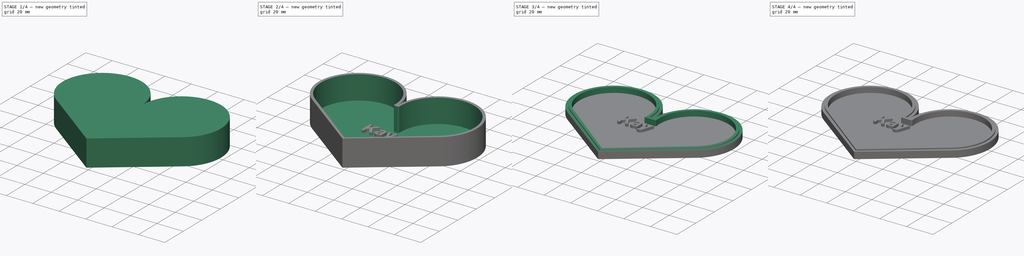
[diagram: build sequence overview — one tinted view per stage of 4, left to right]
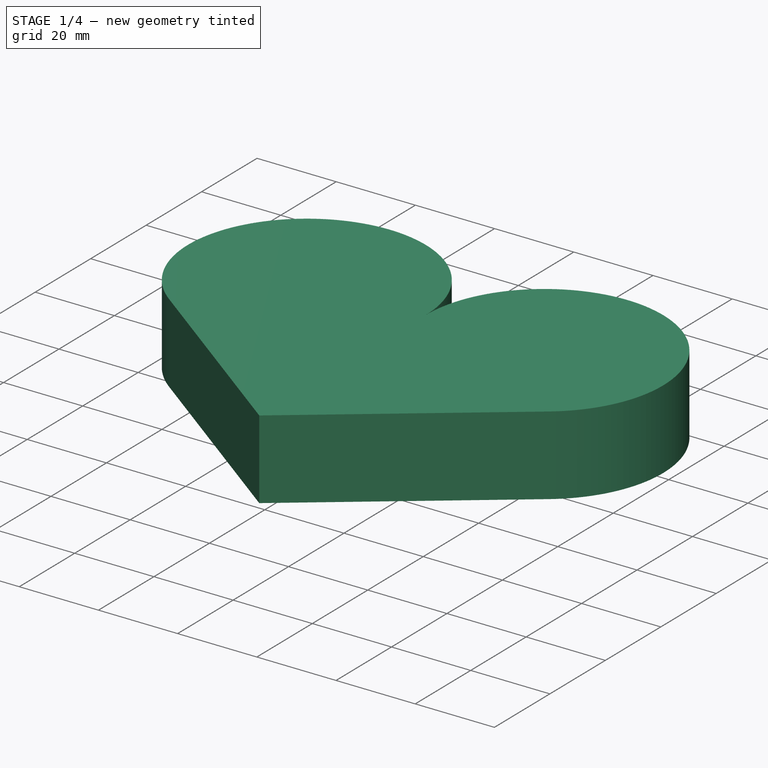
[diagram: stage 1 of 4 — iso view after this stage's code; geometry added in this stage tinted green]
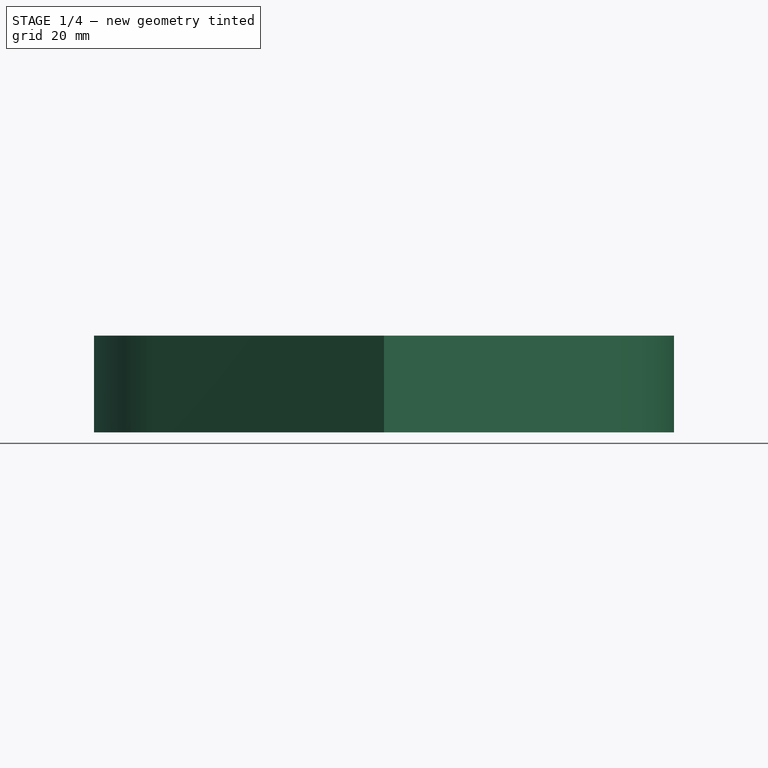
[diagram: stage 1 of 4 — front view after this stage's code; geometry added in this stage tinted green]
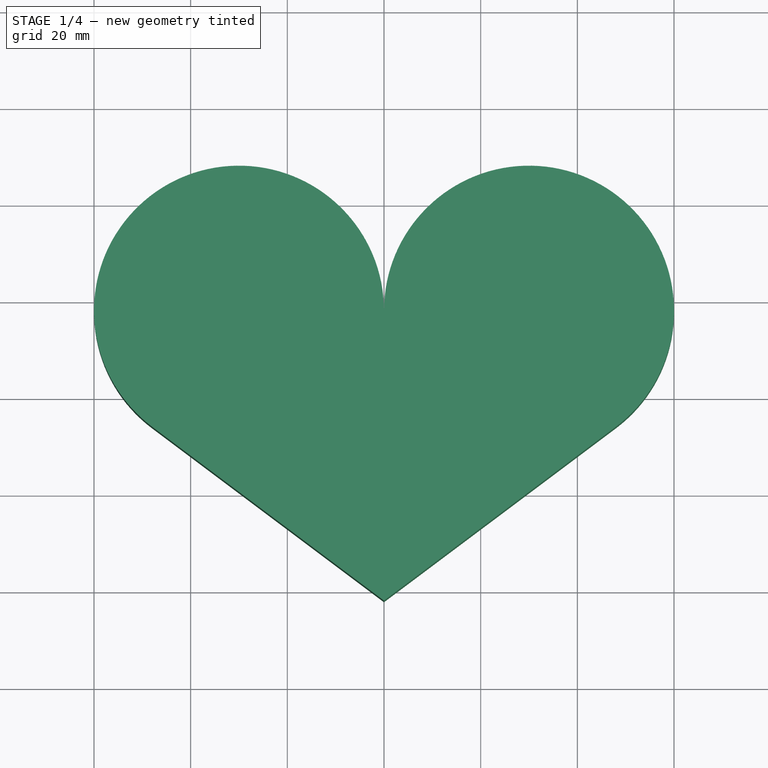
[diagram: stage 1 of 4 — top view after this stage's code; geometry added in this stage tinted green]
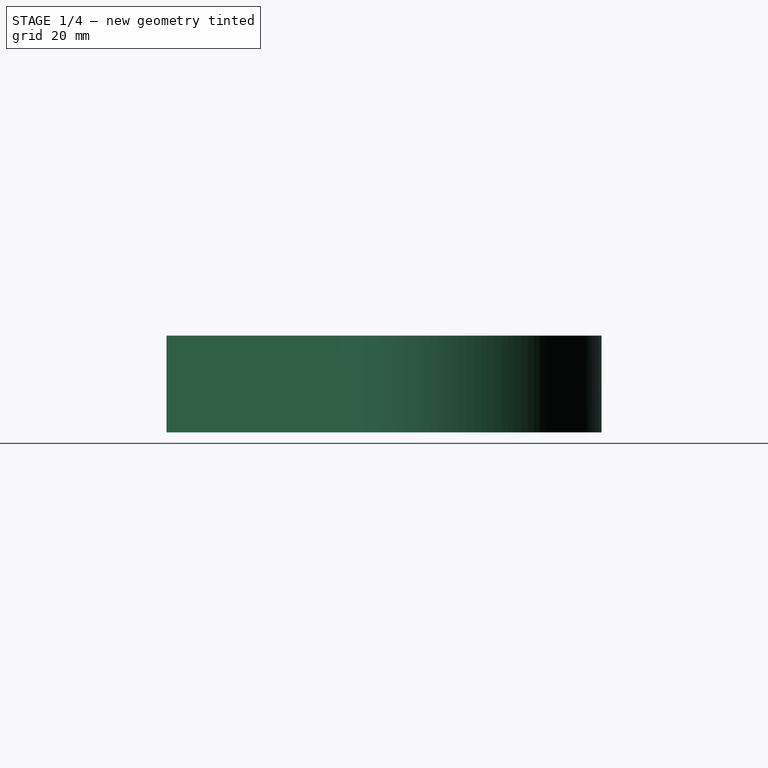
[diagram: stage 1 of 4 — right view after this stage's code; geometry added in this stage tinted green]
FCSTD DOCUMENT  (FreeCAD 0.19R24291 (Git))
Label: heart_box_base
License: All rights reserved
LicenseURL: http://en.wikipedia.org/wiki/All_rights_reserved
objects: Sketcher::SketchObject×7, PartDesign::Pad×3, PartDesign::Pocket×2, PartDesign::Fillet×2, PartDesign::Body×2, Part::Part2DObjectPython×1, Part::Extrusion×1, Part::MultiFuse×1
note: 26 computed .brp shape members not serialized (recipe doc carries the construction recipe); baked Part::Feature solids carry a one-line shape summary decoded from their .brp

FEATURE [Sketcher::SketchObject] Sketch
  FullyConstrained = true
  MapMode = 5
  Support = -> [XY_Plane]
  sketch-geometry (4):
    g0: LineSegment StartX=0 StartY=-42 StartZ=0 EndX=-48 EndY=-5.99995 EndZ=0
    g1: ArcOfCircle CenterX=-30 CenterY=18 CenterZ=0 NormalX=0 NormalY=0 NormalZ=1 AngleXU=0 Radius=30 StartAngle=6.28318 EndAngle=10.3521
    g2: ArcOfCircle CenterX=30 CenterY=18 CenterZ=0 NormalX=0 NormalY=0 NormalZ=1 AngleXU=0 Radius=30 StartAngle=5.35589 EndAngle=9.42478
    g3: LineSegment StartX=48 StartY=-5.99995 StartZ=0 EndX=0 EndY=-42 EndZ=0
  constraints (11):
    c: PointOnObject(g0,g-2)
    c: Coincident(g3,g0)
    c: Coincident(g1,g2)
    c: Tangent(g2,g3) = 1.5708
    c: Tangent(g1,g0) = 1.5708
    c: PointOnObject(g1,g-2)
    c: Symmetric(g1,g2,g-2)
    c: DistanceY(g0,g1) = 60
    c: DistanceX(g1,g2) = 60
    c: Radius(g2) = 30
    c: DistanceY(g-1,g1) = 18
FEATURE [PartDesign::Pad] Pad
  Direction = (1,1,1)
  Length = 20
  Length2 = 100
  Profile = -> Sketch
  Refine = true
  Type = 0
FEATURE [PartDesign::Body] Body001  label="top"
  Group = -> [Sketch003,Pad001,Sketch004,Sketch005,Pad002,Sketch007,Sketch006,Pocket001,Fillet001]
  Origin = -> Origin001
  Tip = -> Fillet001
FEATURE [Part::Part2DObjectPython] ShapeString  # Draft 2D object (typed FeaturePython)
  FontFile = /System/Library/Fonts/Supplemental/Arial Bold.ttf
  Placement = pos=(-13.68,-3.51,6) rot=(0,0,1;0rad)
  Size = 10
  String = Kay
  Tracking = 0
FEATURE [Part::Extrusion] Extrude
  Base = -> ShapeString
  Dir = (0,0,1)
  DirMode = 2
  FaceMakerClass = Part::FaceMakerBullseye
  LengthFwd = 2
  LengthRev = 0
  Solid = false
  Symmetric = false
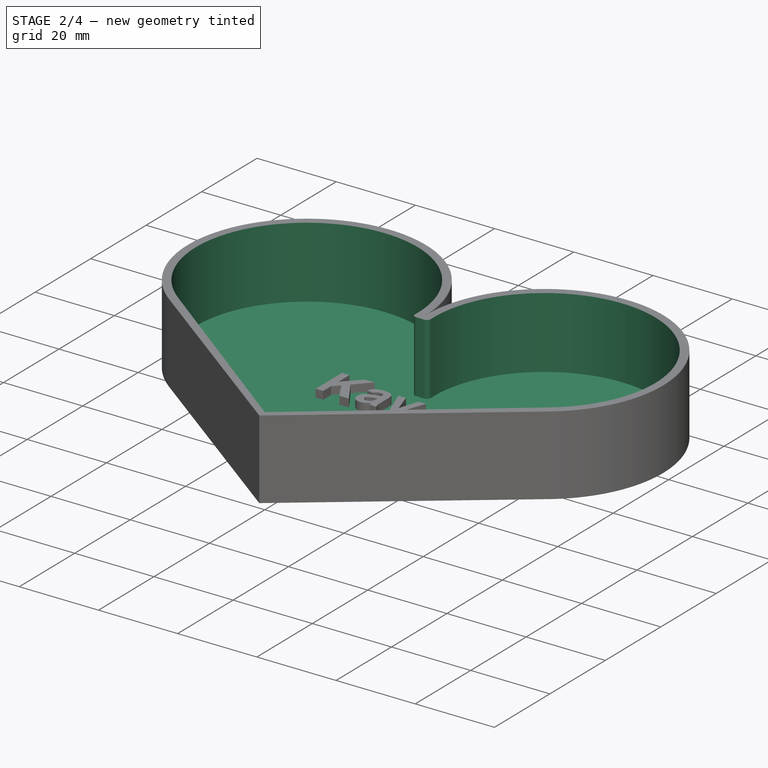
[diagram: stage 2 of 4 — iso view after this stage's code; geometry added in this stage tinted green]
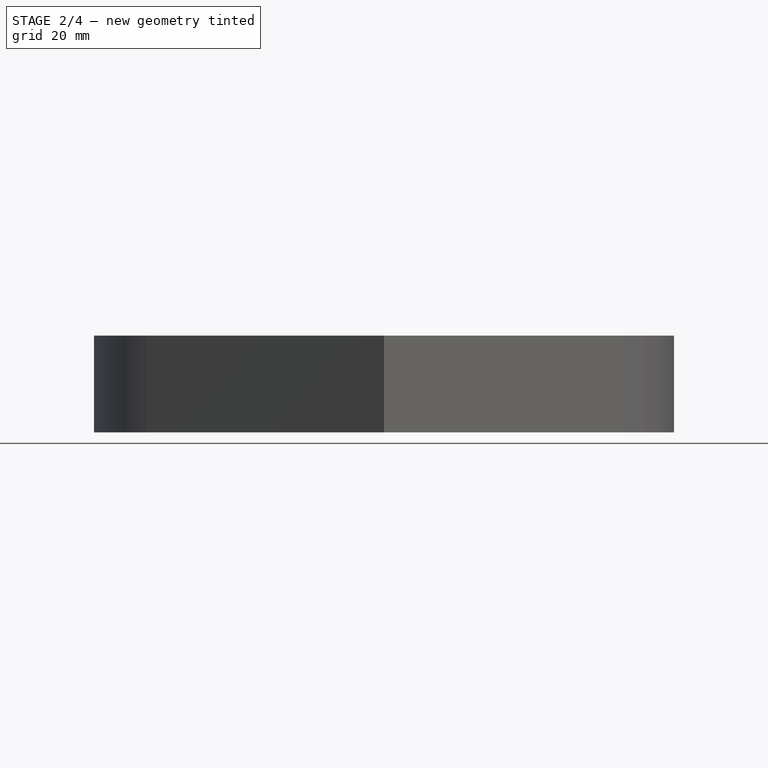
[diagram: stage 2 of 4 — front view after this stage's code; geometry added in this stage tinted green]
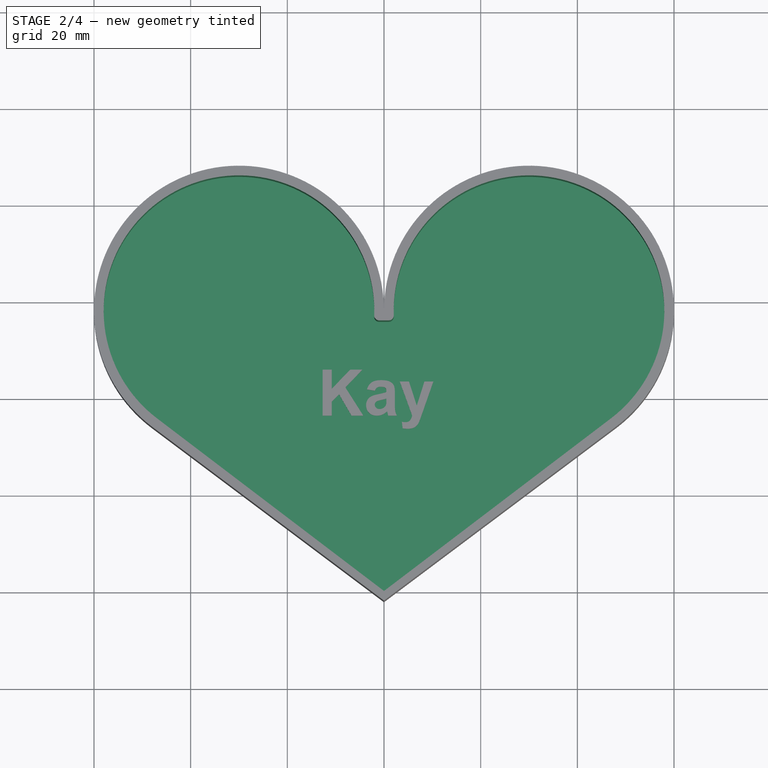
[diagram: stage 2 of 4 — top view after this stage's code; geometry added in this stage tinted green]
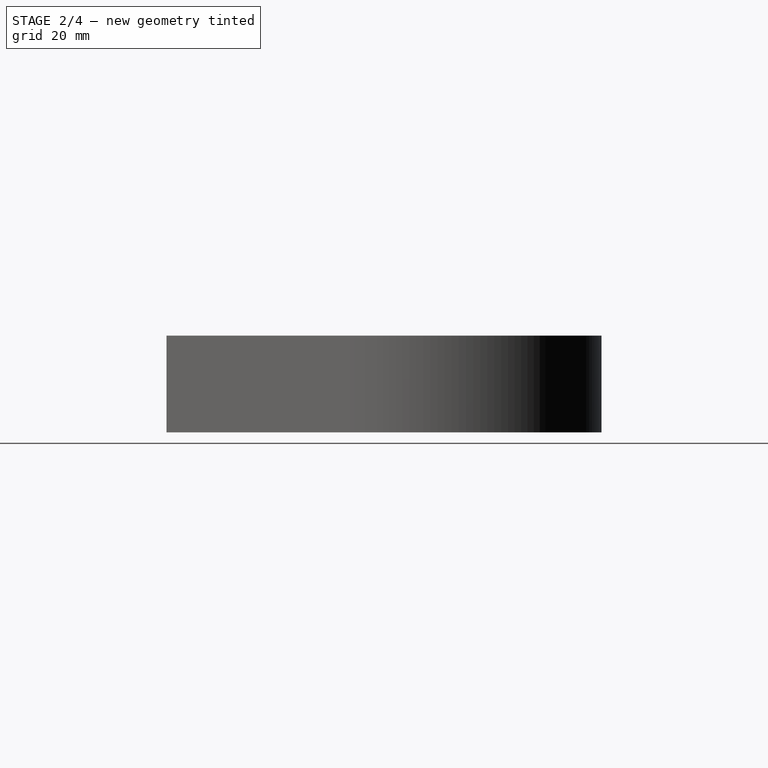
[diagram: stage 2 of 4 — right view after this stage's code; geometry added in this stage tinted green]
FEATURE [Sketcher::SketchObject] Sketch001
  AttachmentOffset = pos=(0,0,20) rot=(0,0,1;0rad)
  ExternalGeometry = -> [Pad]
  FullyConstrained = true
  MapMode = 5
  Placement = pos=(0,0,20) rot=(0,0,1;0rad)
  Support = -> [XY_Plane]
  sketch-geometry (7):
    g0: LineSegment StartX=0 StartY=-40 StartZ=0 EndX=-46.9518 EndY=-4.28534 EndZ=0
    g1: LineSegment StartX=46.9518 StartY=-4.28534 StartZ=0 EndX=0 EndY=-40 EndZ=0
    g2: ArcOfCircle CenterX=30 CenterY=18 CenterZ=0 NormalX=0 NormalY=0 NormalZ=1 AngleXU=0 Radius=28 StartAngle=5.36268 EndAngle=9.49627
    g3: GeomPoint X=0 Y=16 Z=0
    g4: LineSegment StartX=0 StartY=16 StartZ=0 EndX=2.07152 EndY=16 EndZ=0
    g5: ArcOfCircle CenterX=-30 CenterY=18 CenterZ=0 NormalX=0 NormalY=0 NormalZ=1 AngleXU=0 Radius=28 StartAngle=6.21169 EndAngle=10.3453
    g6: LineSegment StartX=-2.07152 StartY=16 StartZ=0 EndX=0 EndY=16 EndZ=0
  constraints (17):
    c: PointOnObject(g0,g-2)
    c: Coincident(g1,g0)
    c: DistanceY(g-4,g0) = 2
    c: Tangent(g2,g1) = 1.5708
    c: Coincident(g2,g-3)
    c: Radius(g2) = 28
    c: PointOnObject(g3,g-2)
    c: DistanceY(g3,g-3) = 2
    c: Coincident(g4,g3)
    c: Coincident(g4,g2)
    c: Horizontal(g4)
    c: Coincident(g5,g-5)
    c: Radius(g5) = 28
    c: Coincident(g6,g5)
    c: Coincident(g6,g4)
    c: Horizontal(g6)
    c: Tangent(g5,g0) = 1.5708
FEATURE [PartDesign::Pocket] Pocket
  BaseFeature = -> Pad
  Length = 18
  Length2 = 100
  Profile = -> Sketch001
  Refine = true
  Type = 0
FEATURE [PartDesign::Fillet] Fillet
  Base = -> Pocket [Edge25,Edge23]
  BaseFeature = -> Pocket
  Radius = 1
  Refine = true
  SupportTransform = false
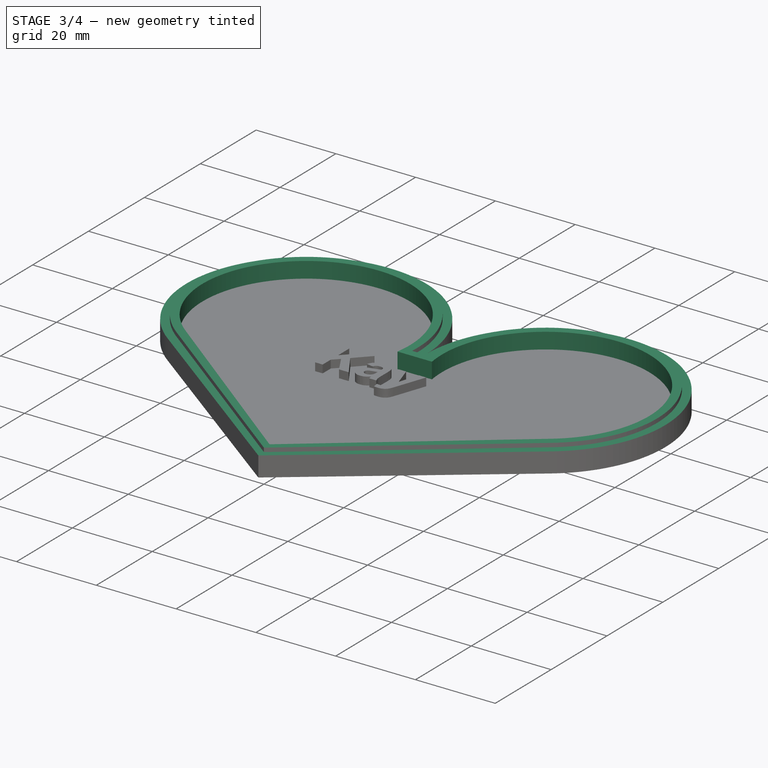
[diagram: stage 3 of 4 — iso view after this stage's code; geometry added in this stage tinted green]
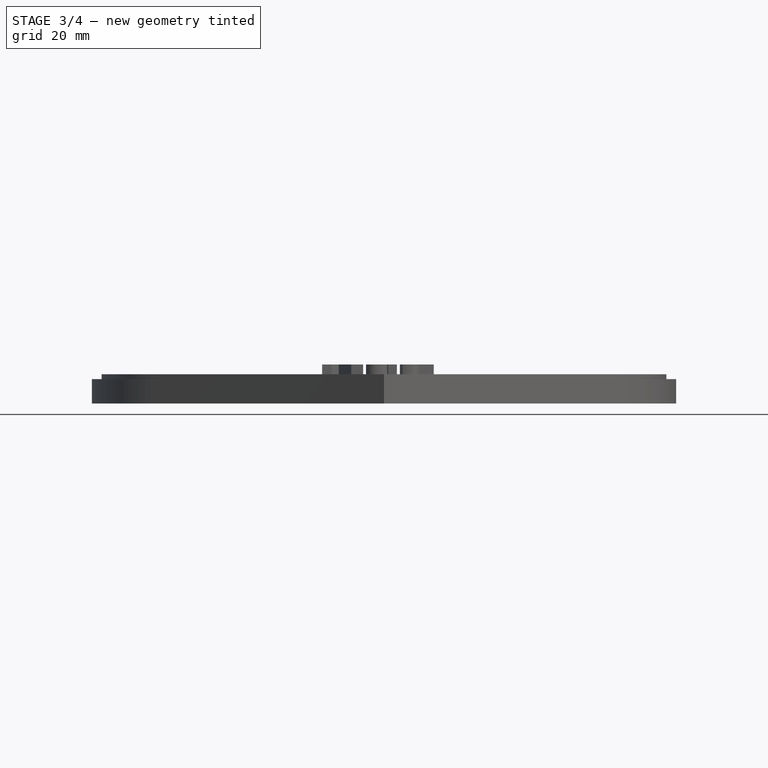
[diagram: stage 3 of 4 — front view after this stage's code; geometry added in this stage tinted green]
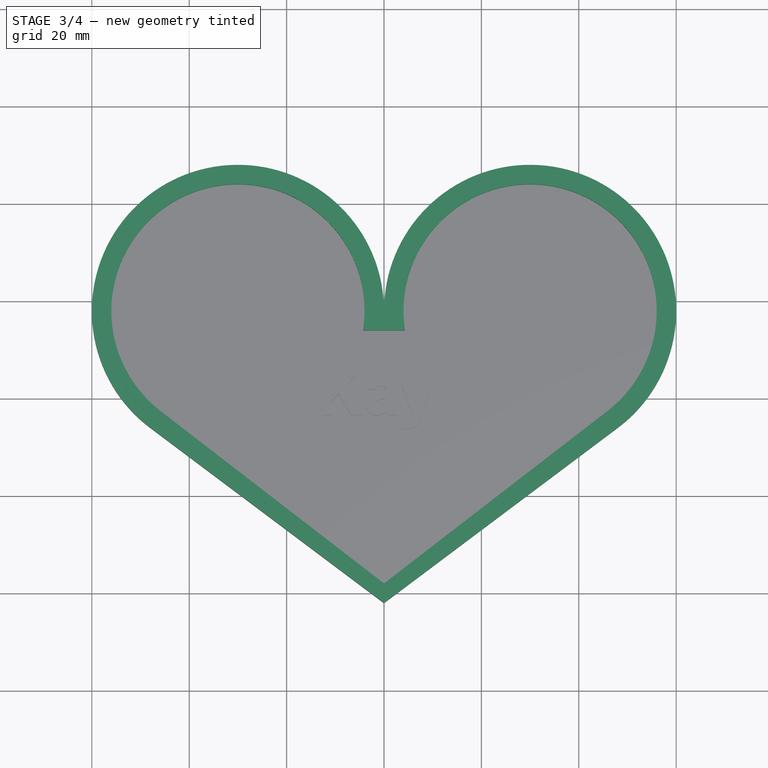
[diagram: stage 3 of 4 — top view after this stage's code; geometry added in this stage tinted green]
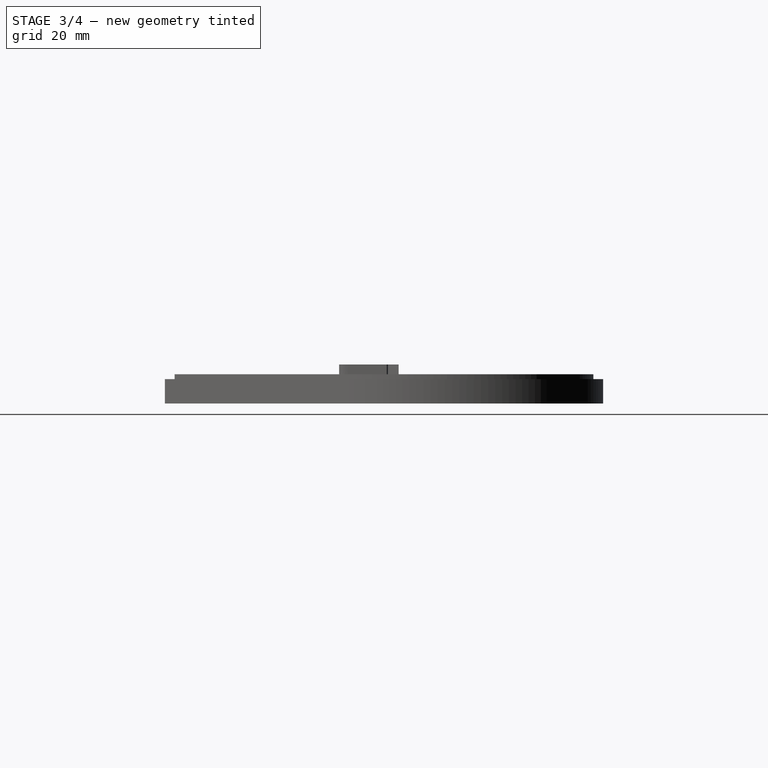
[diagram: stage 3 of 4 — right view after this stage's code; geometry added in this stage tinted green]
FEATURE [PartDesign::Body] Body
  Group = -> [Sketch,Pad,Sketch001,Pocket,Fillet]
  Origin = -> Origin
  Tip = -> Fillet
FEATURE [Sketcher::SketchObject] Sketch003
  FullyConstrained = true
  MapMode = 5
  Support = -> [XY_Plane001]
  sketch-geometry (4):
    g0: LineSegment StartX=0 StartY=-42 StartZ=0 EndX=-48 EndY=-5.99995 EndZ=0
    g1: ArcOfCircle CenterX=-30 CenterY=18 CenterZ=0 NormalX=0 NormalY=0 NormalZ=1 AngleXU=0 Radius=30 StartAngle=6.28318 EndAngle=10.3521
    g2: ArcOfCircle CenterX=30 CenterY=18 CenterZ=0 NormalX=0 NormalY=0 NormalZ=1 AngleXU=0 Radius=30 StartAngle=5.35589 EndAngle=9.42478
    g3: LineSegment StartX=48 StartY=-5.99995 StartZ=0 EndX=0 EndY=-42 EndZ=0
  constraints (11):
    c: PointOnObject(g0,g-2)
    c: Coincident(g3,g0)
    c: Coincident(g1,g2)
    c: Tangent(g2,g3) = 1.5708
    c: Tangent(g1,g0) = 1.5708
    c: PointOnObject(g1,g-2)
    c: Symmetric(g1,g2,g-2)
    c: DistanceY(g0,g1) = 60
    c: DistanceX(g1,g2) = 60
    c: Radius(g2) = 30
    c: DistanceY(g-1,g1) = 18
FEATURE [PartDesign::Pad] Pad001
  Direction = (1,1,1)
  Length = 5
  Length2 = 100
  Profile = -> Sketch003
  Refine = true
  Type = 0
FEATURE [Sketcher::SketchObject] Sketch004
  ExternalGeometry = -> [Pad]
  FullyConstrained = true
  MapMode = 5
  Support = -> [XY_Plane001]
  sketch-geometry (7):
    g0: LineSegment StartX=0 StartY=-40 StartZ=0 EndX=-46.9518 EndY=-4.28534 EndZ=0
    g1: LineSegment StartX=46.9518 StartY=-4.28534 StartZ=0 EndX=0 EndY=-40 EndZ=0
    g2: ArcOfCircle CenterX=30 CenterY=18 CenterZ=0 NormalX=0 NormalY=0 NormalZ=1 AngleXU=0 Radius=28 StartAngle=5.36268 EndAngle=9.49627
    g3: GeomPoint X=0 Y=16 Z=0
    g4: LineSegment StartX=0 StartY=16 StartZ=0 EndX=2.07152 EndY=16 EndZ=0
    g5: ArcOfCircle CenterX=-30 CenterY=18 CenterZ=0 NormalX=0 NormalY=0 NormalZ=1 AngleXU=0 Radius=28 StartAngle=6.21169 EndAngle=10.3453
    g6: LineSegment StartX=-2.07152 StartY=16 StartZ=0 EndX=0 EndY=16 EndZ=0
  constraints (17):
    c: PointOnObject(g0,g-2)
    c: Coincident(g1,g0)
    c: DistanceY(g-4,g0) = 2
    c: Tangent(g2,g1) = 1.5708
    c: Coincident(g2,g-3)
    c: Radius(g2) = 28
    c: PointOnObject(g3,g-2)
    c: DistanceY(g3,g-3) = 2
    c: Coincident(g4,g3)
    c: Coincident(g4,g2)
    c: Horizontal(g4)
    c: Coincident(g5,g-5)
    c: Radius(g5) = 28
    c: Coincident(g6,g5)
    c: Coincident(g6,g4)
    c: Horizontal(g6)
    c: Tangent(g5,g0) = 1.5708
FEATURE [Sketcher::SketchObject] Sketch005
  FullyConstrained = true
  MapMode = 5
  Support = -> [XY_Plane001]
  sketch-geometry (4):
    g0: LineSegment StartX=0 StartY=-42 StartZ=0 EndX=-48 EndY=-5.99995 EndZ=0
    g1: ArcOfCircle CenterX=-30 CenterY=18 CenterZ=0 NormalX=0 NormalY=0 NormalZ=1 AngleXU=0 Radius=30 StartAngle=6.28318 EndAngle=10.3521
    g2: ArcOfCircle CenterX=30 CenterY=18 CenterZ=0 NormalX=0 NormalY=0 NormalZ=1 AngleXU=0 Radius=30 StartAngle=5.35589 EndAngle=9.42478
    g3: LineSegment StartX=48 StartY=-5.99995 StartZ=0 EndX=0 EndY=-42 EndZ=0
  constraints (11):
    c: PointOnObject(g0,g-2)
    c: Coincident(g3,g0)
    c: Coincident(g1,g2)
    c: Tangent(g2,g3) = 1.5708
    c: Tangent(g1,g0) = 1.5708
    c: PointOnObject(g1,g-2)
    c: Symmetric(g1,g2,g-2)
    c: DistanceY(g0,g1) = 60
    c: DistanceX(g1,g2) = 60
    c: Radius(g2) = 30
    c: DistanceY(g-1,g1) = 18
FEATURE [PartDesign::Pad] Pad002
  BaseFeature = -> Pad001
  Direction = (1,1,1)
  Length = 6
  Length2 = 100
  Profile = -> Sketch004
  Refine = true
  Type = 0
FEATURE [Sketcher::SketchObject] Sketch006
  FullyConstrained = true
  MapMode = 5
  Placement = pos=(0,0,6) rot=(0,0,1;0rad)
  sketch-geometry (4):
    g0: LineSegment StartX=0 StartY=-42 StartZ=0 EndX=-48 EndY=-5.99995 EndZ=0
    g1: ArcOfCircle CenterX=-30 CenterY=18 CenterZ=0 NormalX=0 NormalY=0 NormalZ=1 AngleXU=0 Radius=30 StartAngle=6.28318 EndAngle=10.3521
    g2: ArcOfCircle CenterX=30 CenterY=18 CenterZ=0 NormalX=0 NormalY=0 NormalZ=1 AngleXU=0 Radius=30 StartAngle=5.35589 EndAngle=9.42478
    g3: LineSegment StartX=48 StartY=-5.99995 StartZ=0 EndX=0 EndY=-42 EndZ=0
  constraints (11):
    c: PointOnObject(g0,g-2)
    c: Coincident(g3,g0)
    c: Coincident(g1,g2)
    c: Tangent(g2,g3) = 1.5708
    c: Tangent(g1,g0) = 1.5708
    c: PointOnObject(g1,g-2)
    c: Symmetric(g1,g2,g-2)
    c: DistanceY(g0,g1) = 60
    c: DistanceX(g1,g2) = 60
    c: Radius(g2) = 30
    c: DistanceY(g-1,g1) = 18
FEATURE [Sketcher::SketchObject] Sketch007
  ExternalGeometry = -> [Fillet]
  FullyConstrained = true
  MapMode = 5
  Placement = pos=(0,0,6) rot=(0,0,1;0rad)
  sketch-geometry (7):
    g0: LineSegment StartX=0 StartY=-38 StartZ=0 EndX=-45.8865 EndY=-2.58199 EndZ=0
    g1: LineSegment StartX=45.8865 StartY=-2.58199 StartZ=0 EndX=0 EndY=-38 EndZ=0
    g2: ArcOfCircle CenterX=30 CenterY=18 CenterZ=0 NormalX=0 NormalY=0 NormalZ=1 AngleXU=0 Radius=26 StartAngle=5.36974 EndAngle=9.57924
    g3: GeomPoint X=0 Y=14 Z=0
    g4: LineSegment StartX=0 StartY=14 StartZ=0 EndX=4.30954 EndY=14 EndZ=0
    g5: ArcOfCircle CenterX=-30 CenterY=18 CenterZ=0 NormalX=0 NormalY=0 NormalZ=1 AngleXU=0 Radius=26 StartAngle=6.12872 EndAngle=10.3382
    g6: LineSegment StartX=-4.30954 StartY=14 StartZ=0 EndX=0 EndY=14 EndZ=0
  constraints (17):
    c: PointOnObject(g0,g-2)
    c: Coincident(g1,g0)
    c: Tangent(g2,g1) = 1.5708
    c: Radius(g2) = 26
    c: PointOnObject(g3,g-2)
    c: Coincident(g4,g3)
    c: Coincident(g4,g2)
    c: Horizontal(g4)
    c: Radius(g5) = 26
    c: Coincident(g6,g5)
    c: Coincident(g6,g4)
    c: Horizontal(g6)
    c: Tangent(g5,g0) = 1.5708
    c: DistanceY(g4,g-3) = 4
    c: Coincident(g5,g-3)
    c: Coincident(g2,g-4)
    c: DistanceY(g-5,g0) = 2
FEATURE [PartDesign::Pocket] Pocket001
  BaseFeature = -> Pad002
  Length = 4
  Length2 = 100
  Profile = -> Sketch007
  Refine = true
  Type = 0
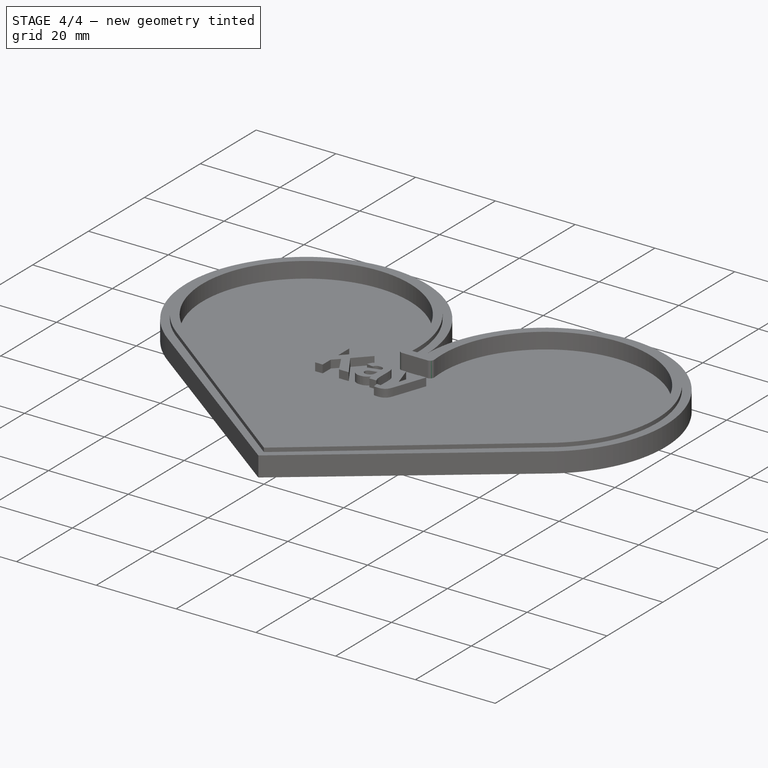
[diagram: stage 4 of 4 — iso view after this stage's code; geometry added in this stage tinted green]
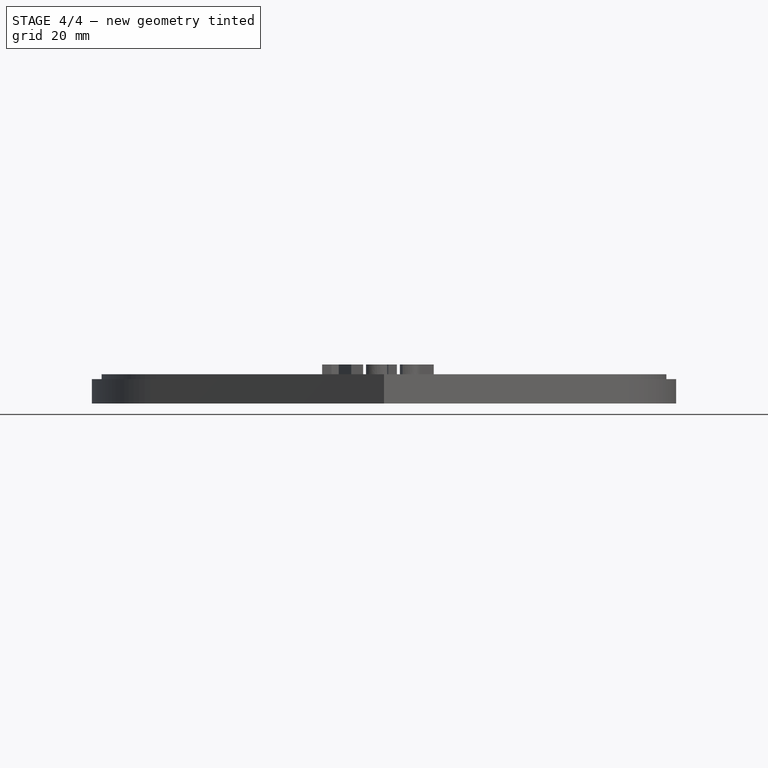
[diagram: stage 4 of 4 — front view after this stage's code; geometry added in this stage tinted green]
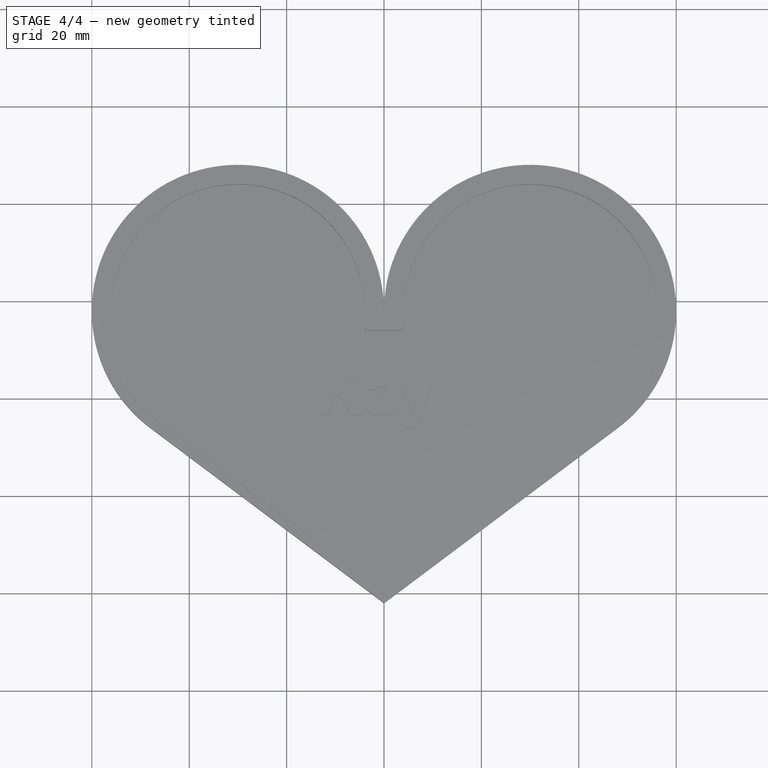
[diagram: stage 4 of 4 — top view after this stage's code; geometry added in this stage tinted green]
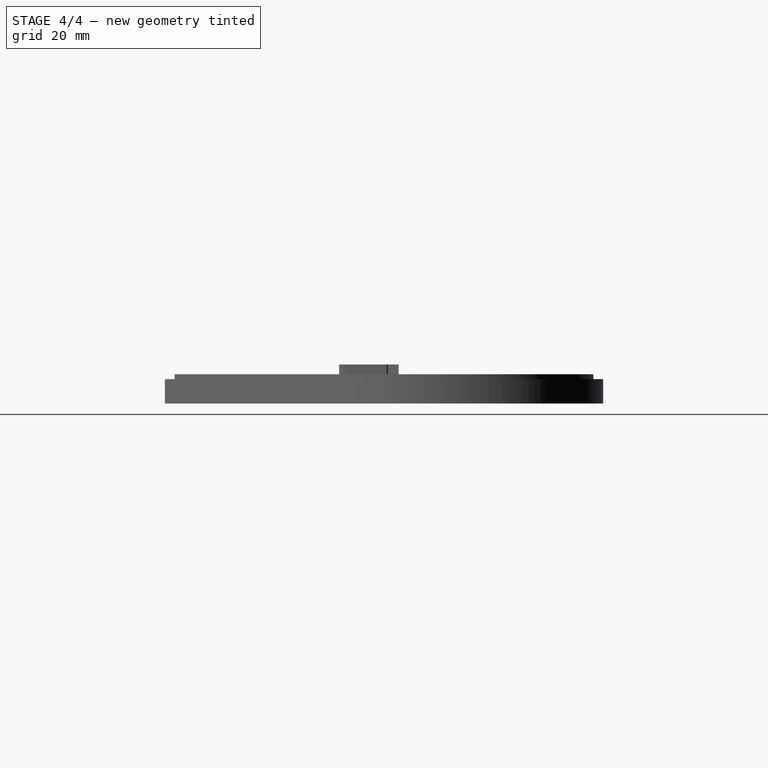
[diagram: stage 4 of 4 — right view after this stage's code; geometry added in this stage tinted green]
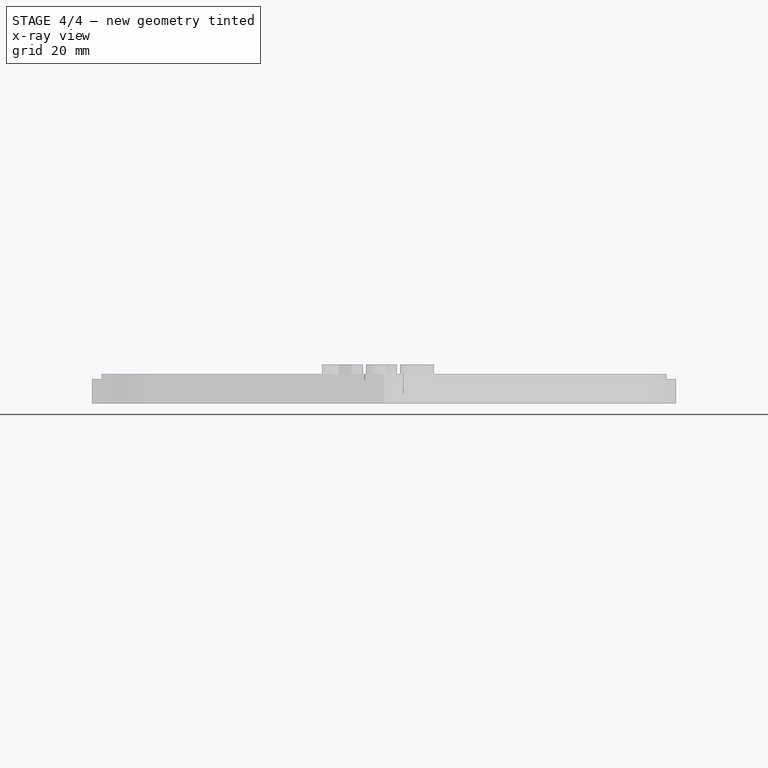
[diagram: stage 4 of 4 — x-ray composite at the front view; earlier geometry ghosted, this stage's added geometry solid]
FEATURE [PartDesign::Fillet] Fillet001
  Base = -> Pocket001 [Edge40,Edge38]
  BaseFeature = -> Pocket001
  Radius = 1
  Refine = true
  SupportTransform = false
FEATURE [Part::MultiFuse] Fusion
  Refine = true
  Shapes = -> [Extrude,Body001]
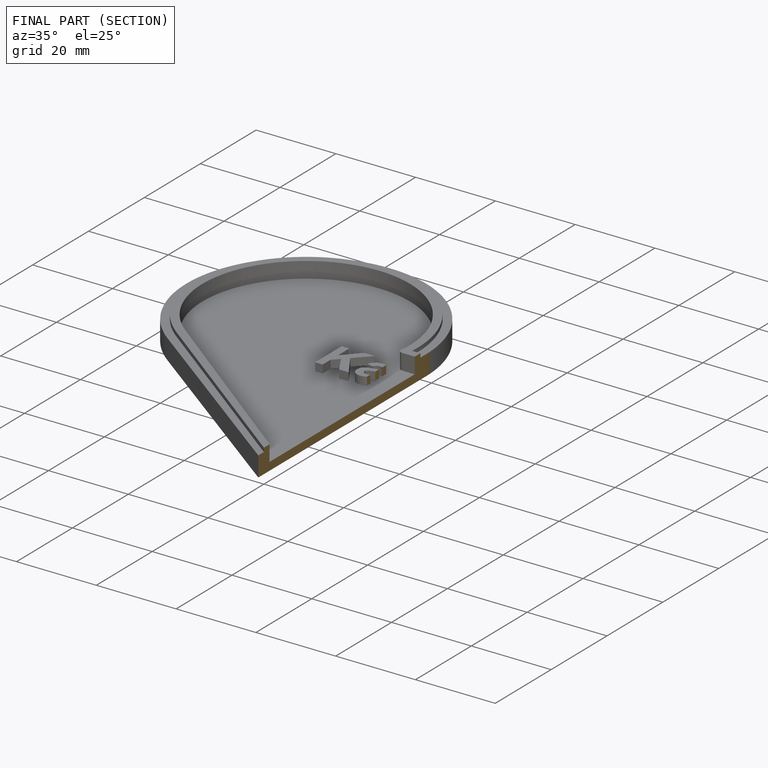
[diagram: finished part — half-section view (interior)]
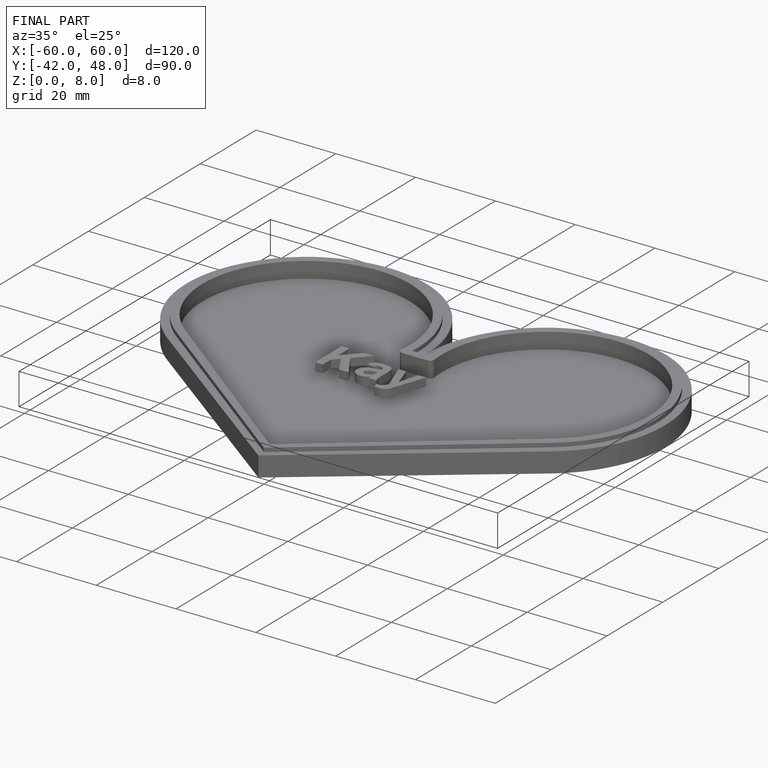
[diagram: finished part — iso view with bounding-box wireframe]
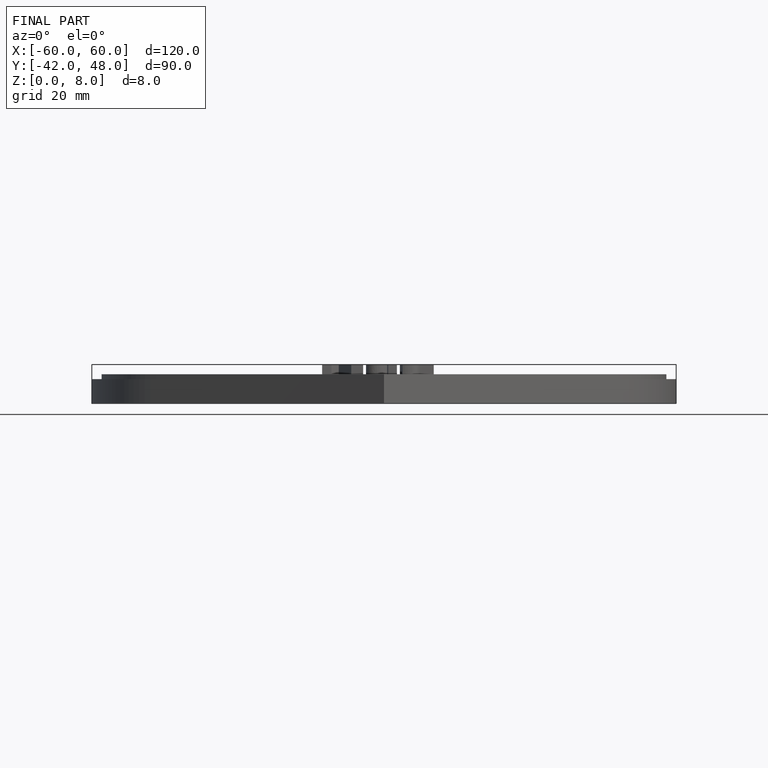
[diagram: finished part — front view with bounding-box wireframe]
